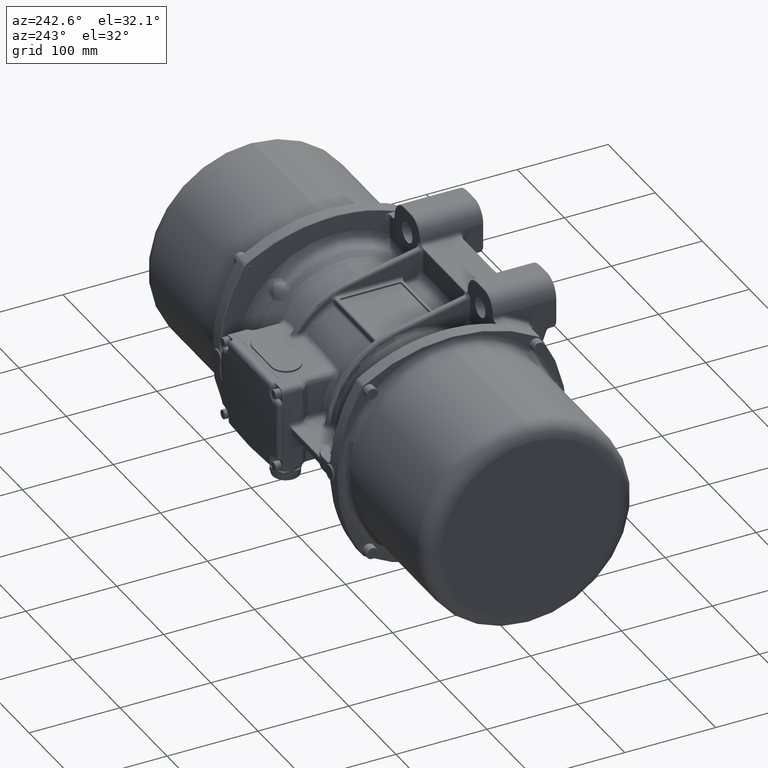
[diagram: clean part render]
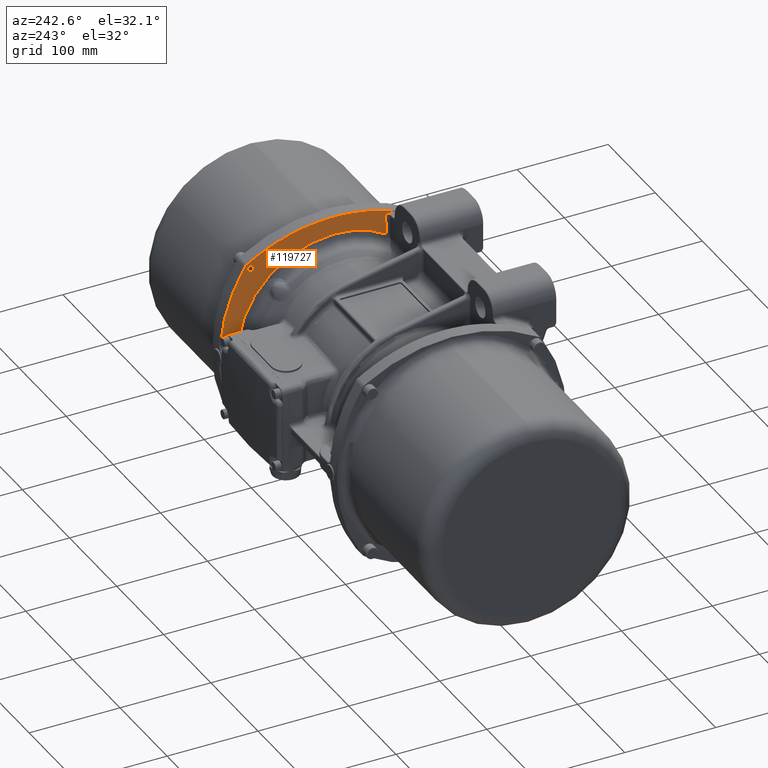
[diagram: same view with one face highlighted and labeled with its STEP entity id]
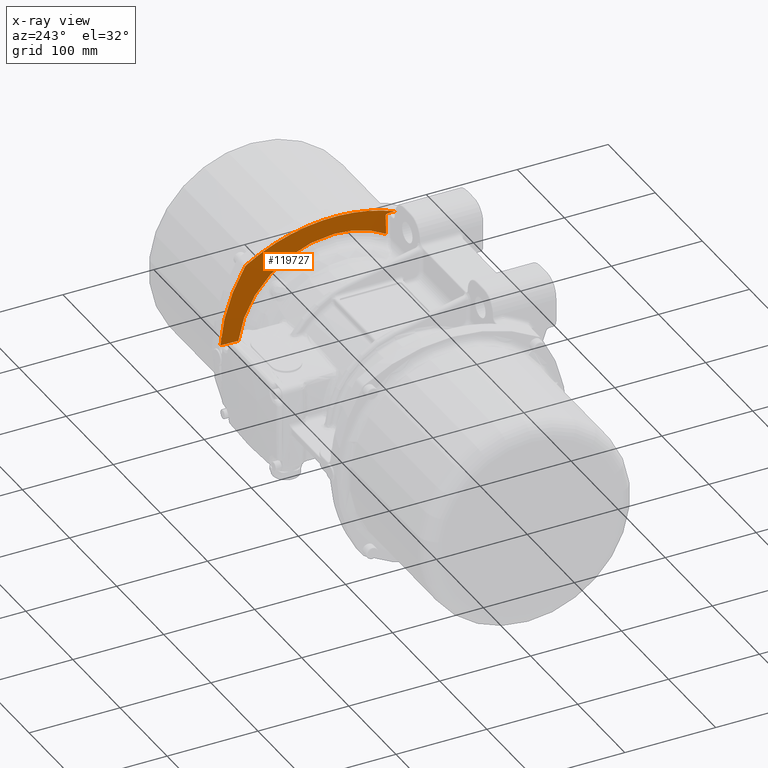
[diagram: x-ray of the same camera — body ghosted, the highlighted face saturated]
A machine part, auxiliary view. The second image highlights one B-rep face of the part: STEP entity #119727.
The next image is the same camera in x-ray: the body ghosted, the highlighted face saturated — about 0% of this face is hidden behind the body in this view.
In plain terms, the highlighted conical surface has half-angle 87.5 deg.
Its self-contained STEP definition (entity closure, byte-faithful):
#2241 = CARTESIAN_POINT ( 'NONE',  ( 117.4677150568148100, 125.0368863530946400, 13.47196392093218300 ) ) ;
#3470 = CARTESIAN_POINT ( 'NONE',  ( 117.4558255696128000, 1.925480652683108500, 125.6727941061263900 ) ) ;
#3715 = ORIENTED_EDGE ( 'NONE', *, *, #57928, .F. ) ;
#4384 = CARTESIAN_POINT ( 'NONE',  ( 117.4677150568148100, 125.0368863530946400, 13.47196392093218300 ) ) ;
#4963 = CARTESIAN_POINT ( 'NONE',  ( 116.6257580500384000, -1.324948089295330500E-009, 106.4765673558459000 ) ) ;
#6811 = CARTESIAN_POINT ( 'NONE',  ( 116.6257580500384100, 1.615201028482005100E-010, 9.119874994079069100E-011 ) ) ;
#8222 = CARTESIAN_POINT ( 'NONE',  ( 117.4677150568148100, 125.0368863530946400, 13.47196392093218300 ) ) ;
#12786 = EDGE_CURVE ( 'NONE', #91182, #26614, #55706, .T. ) ;
#13473 = CARTESIAN_POINT ( 'NONE',  ( 116.6257580500119800, 105.6215036489031000, 13.46689875197479900 ) ) ;
#14242 = CARTESIAN_POINT ( 'NONE',  ( 117.4653605061657400, -12.21067130720426200, 125.1627290816952600 ) ) ;
#14693 = CARTESIAN_POINT ( 'NONE',  ( 117.5932019673642500, 50.77557176755970400, 118.2420169232824100 ) ) ;
#17097 = CARTESIAN_POINT ( 'NONE',  ( 117.5342284559889500, -59.53953818600024300, 112.4999999996195300 ) ) ;
#17587 = CARTESIAN_POINT ( 'NONE',  ( 117.6447263070271100, 115.4079156445912800, 59.54687298320791900 ) ) ;
#18033 = CARTESIAN_POINT ( 'NONE',  ( 117.7161084170270600, 111.4364372665774400, 69.74394892624351900 ) ) ;
#18946 = CARTESIAN_POINT ( 'NONE',  ( 117.6671670750270900, 114.1659180145869100, 62.96627683421986200 ) ) ;
#19624 = CARTESIAN_POINT ( 'NONE',  ( 117.9704105569999900, 8.945691409856237900E-010, -1.024501664059762600E-009 ) ) ;
#20157 = VERTEX_POINT ( 'NONE', #53649 ) ;
#20210 = ORIENTED_EDGE ( 'NONE', *, *, #85045, .T. ) ;
#22697 = CARTESIAN_POINT ( 'NONE',  ( 117.9534219861792800, 97.87939773999440300, 95.69297844499453700 ) ) ;
#23172 = CARTESIAN_POINT ( 'NONE',  ( 117.4615539192428600, -57.34308942459055200, 111.7676824286001800 ) ) ;
#24544 = CARTESIAN_POINT ( 'NONE',  ( 117.4747312341459800, -57.66477074799093600, 111.9416851892193700 ) ) ;
#25771 = EDGE_CURVE ( 'NONE', #20157, #64998, #51093, .T. ) ;
#25882 = CARTESIAN_POINT ( 'NONE',  ( 117.9605981440000000, 97.27063747900000100, 96.54655349200001500 ) ) ;
#25916 = CARTESIAN_POINT ( 'NONE',  ( 117.4687988098957600, -57.51886362279500300, 111.8639397533196800 ) ) ;
#26614 = VERTEX_POINT ( 'NONE', #133314 ) ;
#27746 = VERTEX_POINT ( 'NONE', #4963 ) ;
#28803 = CARTESIAN_POINT ( 'NONE',  ( 117.6970540325541500, -67.14356072571973800, 112.5000002714595700 ) ) ;
#29134 = B_SPLINE_CURVE_WITH_KNOTS ( 'NONE', 3,
 ( #2241, #45581, #44233, #13473 ),
 .UNSPECIFIED., .F., .F.,
 ( 4, 4 ),
 ( 0.0000000000000000000, 1.000000000000000000 ),
 .UNSPECIFIED. ) ;
#30312 = DIRECTION ( 'NONE',  ( 1.000000000000000000, 0.0000000000000000000, 0.0000000000000000000 ) ) ;
#30515 = ORIENTED_EDGE ( 'NONE', *, *, #25771, .T. ) ;
#33576 = CARTESIAN_POINT ( 'NONE',  ( 117.5342284559889500, -59.53953818600024300, 112.4999999996195300 ) ) ;
#34337 = CARTESIAN_POINT ( 'NONE',  ( 117.4697280557261600, -57.54166604394559700, 111.8761457554384200 ) ) ;
#34793 = CARTESIAN_POINT ( 'NONE',  ( 117.4881187190690100, -58.00886136670922600, 112.1090994818467100 ) ) ;
#34816 = ORIENTED_EDGE ( 'NONE', *, *, #65435, .F. ) ;
#36051 = CARTESIAN_POINT ( 'NONE',  ( 117.4741119955146200, -17.52749402712066700, 124.6937862437028300 ) ) ;
#36711 = EDGE_CURVE ( 'NONE', #46596, #58853, #133025, .T. ) ;
#37202 = CARTESIAN_POINT ( 'NONE',  ( 116.8903303810580500, -56.93384935760106900, 97.07296161886790700 ) ) ;
#37909 = CARTESIAN_POINT ( 'NONE',  ( 117.5408950908647700, -40.30670985989454600, 121.0975301589257200 ) ) ;
#38126 = CARTESIAN_POINT ( 'NONE',  ( 116.8562134858862000, -56.93339784807046300, 96.16626201456897100 ) ) ;
#39430 = CARTESIAN_POINT ( 'NONE',  ( 117.5828984120271500, 118.8128289306030200, 49.20870632417194900 ) ) ;
#39478 = CARTESIAN_POINT ( 'NONE',  ( 117.1615769978774000, -56.93729482049418100, 104.2225016164241400 ) ) ;
#43116 = ORIENTED_EDGE ( 'NONE', *, *, #111399, .T. ) ;
#44233 = CARTESIAN_POINT ( 'NONE',  ( 116.8829446854170200, 111.5595002864455400, 13.46872550317877800 ) ) ;
#45576 = CARTESIAN_POINT ( 'NONE',  ( 117.4929305054305800, -58.13825939651703600, 112.1661886081573000 ) ) ;
#45581 = CARTESIAN_POINT ( 'NONE',  ( 117.1635970217449900, 118.0312916445440000, 13.47041457825107000 ) ) ;
#46341 = EDGE_CURVE ( 'NONE', #122673, #27746, #137337, .T. ) ;
#46368 = CARTESIAN_POINT ( 'NONE',  ( 117.5438770599566600, 40.45340099158897800, 120.9304769266154700 ) ) ;
#46509 = CARTESIAN_POINT ( 'NONE',  ( 117.4935941885339800, -58.15636209073110800, 112.1739258373625600 ) ) ;
#46596 = VERTEX_POINT ( 'NONE', #28803 ) ;
#46976 = CARTESIAN_POINT ( 'NONE',  ( 117.5127138153233100, -58.68111357770693800, 112.3950822936966600 ) ) ;
#47291 = CARTESIAN_POINT ( 'NONE',  ( 117.6120843625127300, 54.15839114560847600, 117.2067033062465400 ) ) ;
#47354 = B_SPLINE_CURVE_WITH_KNOTS ( 'NONE', 3,
 ( #54974, #129532, #76411, #23172, #119758, #121629, #25916, #120699, #34337, #67516, #110381, #24544, #109458, #34793, #78673, #45576, #46509, #68426, #98726, #46976, #132309, #89435 ),
 .UNSPECIFIED., .F., .F.,
 ( 4, 2, 1, 1, 1, 1, 2, 2, 1, 1, 1, 1, 2, 2, 4 ),
 ( 0.0000000000000000000, 0.1250000000001702000, 0.1875000000002582700, 0.2187500000003062300, 0.2343750000003262900, 0.2421875000003363100, 0.2460937500003366500, 0.2500000000003370100, 0.3750000000003010900, 0.4375000000002795500, 0.4687500000002654500, 0.4843750000002551800, 0.4921875000002497400, 0.5000000000002443600, 1.000000000000000000 ),
 .UNSPECIFIED. ) ;
#48882 = CARTESIAN_POINT ( 'NONE',  ( 116.6257580500720100, -56.93003381136160400, 89.97905670306109000 ) ) ;
#51093 = B_SPLINE_CURVE_WITH_KNOTS ( 'NONE', 3,
 ( #48882, #92656, #102002, #38126, #37202, #112756, #123506, #59580, #134218, #70320, #72168, #61878, #93580, #39478, #83354, #104752 ),
 .UNSPECIFIED., .F., .F.,
 ( 4, 2, 2, 1, 1, 1, 1, 2, 2, 4 ),
 ( 0.0000000000000000000, 0.2500000000000121000, 0.3750000000000191500, 0.4375000000000226500, 0.4687500000000243100, 0.4843750000000242000, 0.4921875000000232600, 0.4960937500000237000, 0.5000000000000240900, 1.000000000000000000 ),
 .UNSPECIFIED. ) ;
#53649 = CARTESIAN_POINT ( 'NONE',  ( 116.6257580500720100, -56.93003381136160400, 89.97905670306109000 ) ) ;
#54779 = ORIENTED_EDGE ( 'NONE', *, *, #69151, .T. ) ;
#54974 = CARTESIAN_POINT ( 'NONE',  ( 117.4446526062106700, -56.94050154198230700, 111.5388498485508000 ) ) ;
#55706 =( BOUNDED_CURVE ( )  B_SPLINE_CURVE ( 3, ( #8222, #81934, #104701, #123902, #39430, #17587, #18946, #134620, #18033, #70742, #93540, #104235, #92169, #113626 ),
 .UNSPECIFIED., .F., .F. ) 
 B_SPLINE_CURVE_WITH_KNOTS ( ( 4, 2, 2, 2, 2, 2, 4 ),
 ( 0.0000000000000000000, 0.2500000000000001100, 0.5000000000000000000, 0.6250000000000000000, 0.6875000000000004400, 0.7500000000000001100, 1.000000000000000000 ),
 .UNSPECIFIED. ) 
 CURVE ( )  GEOMETRIC_REPRESENTATION_ITEM ( )  RATIONAL_B_SPLINE_CURVE ( ( 0.9999999997482387200, 0.9999999997482309500, 0.9999999997482171800, 0.9999999997481798800, 0.9999999997481563400, 0.9999999997481157100, 0.9999999997481012800, 0.9999999997480788500, 0.9999999997480710800, 0.9999999997480555300, 0.9999999997480475400, 0.9999999997480075700, 0.9999999997479740400, 0.9999999997479411800 ) ) 
 REPRESENTATION_ITEM ( '' )  );
#56659 = CARTESIAN_POINT ( 'NONE',  ( 117.4832950217658700, 23.00264973529984400, 124.2020360313829000 ) ) ;
#57123 = CARTESIAN_POINT ( 'NONE',  ( 117.4853410423307700, -22.84648942015866900, 124.0912025975205400 ) ) ;
#57928 = EDGE_CURVE ( 'NONE', #80049, #46596, #74830, .T. ) ;
#58853 = VERTEX_POINT ( 'NONE', #33576 ) ;
#59580 = CARTESIAN_POINT ( 'NONE',  ( 116.9989676127996000, -56.93523184266374700, 99.94514217519140700 ) ) ;
#60196 = FACE_OUTER_BOUND ( 'NONE', #67870, .T. ) ;
#61663 = AXIS2_PLACEMENT_3D ( 'NONE', #89118, #131969, #122650 ) ;
#61878 = CARTESIAN_POINT ( 'NONE',  ( 117.0276646004862200, -56.93559454232180900, 100.7005631658567900 ) ) ;
#63550 = CONICAL_SURFACE ( 'NONE', #66773, 137.2741731000750200, 1.527163095474054900 ) ;
#64998 = VERTEX_POINT ( 'NONE', #135622 ) ;
#65435 = EDGE_CURVE ( 'NONE', #26614, #80049, #77372, .T. ) ;
#65906 = AXIS2_PLACEMENT_3D ( 'NONE', #6811, #81413, #105125 ) ;
#66773 = AXIS2_PLACEMENT_3D ( 'NONE', #19624, #30312, #72351 ) ;
#67516 = CARTESIAN_POINT ( 'NONE',  ( 117.4699097405919600, -57.54613173628055700, 111.8785282797704800 ) ) ;
#67870 = EDGE_LOOP ( 'NONE', ( #109345, #20210, #106261, #43116, #30515, #54779, #97964, #3715, #34816 ) ) ;
#68390 = CARTESIAN_POINT ( 'NONE',  ( 117.9582153470000100, 97.60004065400001100, 96.13576295099999000 ) ) ;
#68426 = CARTESIAN_POINT ( 'NONE',  ( 117.4940343853696900, -58.16839406668354700, 112.1790441752266900 ) ) ;
#69151 = EDGE_CURVE ( 'NONE', #64998, #58853, #47354, .T. ) ;
#69201 = CARTESIAN_POINT ( 'NONE',  ( 117.9534219861794200, 95.69297844499453700, 97.87939773999434600 ) ) ;
#70111 = CARTESIAN_POINT ( 'NONE',  ( 117.5139955482369300, -33.39640890584971800, 122.5496517376416100 ) ) ;
#70211 = CARTESIAN_POINT ( 'NONE',  ( 117.9534219861794200, 95.69297844499453700, 97.87939773999434600 ) ) ;
#70320 = CARTESIAN_POINT ( 'NONE',  ( 117.0221331036147600, -56.93552442488754700, 100.5550434354021400 ) ) ;
#70742 = CARTESIAN_POINT ( 'NONE',  ( 117.7421544580270000, 109.9754056325723500, 73.10880424825528200 ) ) ;
#71019 = CARTESIAN_POINT ( 'NONE',  ( 117.6970540325541500, -67.14356072571973800, 112.5000002714595700 ) ) ;
#71150 = CARTESIAN_POINT ( 'NONE',  ( 117.5852473182077600, -62.03761550530162300, 112.5000000000000000 ) ) ;
#72168 = CARTESIAN_POINT ( 'NONE',  ( 117.0254514859381200, -56.93556647849380400, 100.6423453762404800 ) ) ;
#72351 = DIRECTION ( 'NONE',  ( 0.0000000000000000000, 0.0000000000000000000, -1.000000000000000000 ) ) ;
#74830 = B_SPLINE_CURVE_WITH_KNOTS ( 'NONE', 3,
 ( #69201, #100432, #111628, #90643, #78534, #47291, #14693, #122386, #120561, #46368, #133072, #121486, #56659, #89299, #3470, #78078, #14242, #36051, #99501, #57123, #131688, #70111, #37909, #112545, #133550, #71019 ),
 .UNSPECIFIED., .F., .F.,
 ( 4, 2, 2, 2, 2, 2, 2, 2, 2, 2, 2, 2, 4 ),
 ( 0.0000000000000000000, 0.1249999996300779100, 0.2499999992601558100, 0.3124999990751948200, 0.3437499989827143000, 0.3749999988902337800, 0.4999999985203117400, 0.6249999981503897600, 0.6874999979654288200, 0.7187499978729483500, 0.7499999977804677800, 0.8749999974105457900, 0.9999999970406239200 ),
 .UNSPECIFIED. ) ;
#76411 = CARTESIAN_POINT ( 'NONE',  ( 117.4551946183333400, -57.19052490387786500, 111.6822255681057200 ) ) ;
#77372 = B_SPLINE_CURVE_WITH_KNOTS ( 'NONE', 3,
 ( #22697, #68390, #25882, #134109, #89851, #70211 ),
 .UNSPECIFIED., .F., .F.,
 ( 4, 2, 4 ),
 ( 0.0000000000000000000, 0.4999999999999998300, 1.000000000000000000 ),
 .UNSPECIFIED. ) ;
#77830 = CIRCLE ( 'NONE', #65906, 106.4765673521439200 ) ;
#78078 = CARTESIAN_POINT ( 'NONE',  ( 117.4615111325971000, -8.672188522774142400, 125.3684986890540100 ) ) ;
#78534 = CARTESIAN_POINT ( 'NONE',  ( 117.6736306582324500, 64.18681501000156700, 113.8123089406194200 ) ) ;
#78673 = CARTESIAN_POINT ( 'NONE',  ( 117.4913581965744400, -58.09563683806681000, 112.1477168754524500 ) ) ;
#80049 = VERTEX_POINT ( 'NONE', #113700 ) ;
#81413 = DIRECTION ( 'NONE',  ( 1.000000000000000000, 7.887646011182615700E-017, 1.634229061735414500E-016 ) ) ;
#81934 = CARTESIAN_POINT ( 'NONE',  ( 117.4780132550273400, 124.4854513636227700, 20.79179788307261500 ) ) ;
#83354 = CARTESIAN_POINT ( 'NONE',  ( 117.2998347311564100, -56.93892732649145200, 107.8155808417640200 ) ) ;
#85045 = EDGE_CURVE ( 'NONE', #91182, #122673, #29134, .T. ) ;
#89118 = CARTESIAN_POINT ( 'NONE',  ( 116.6257580500384100, 1.615201028482005100E-010, 9.119874994079069100E-011 ) ) ;
#89299 = CARTESIAN_POINT ( 'NONE',  ( 117.4598579839941300, 8.966844016890739500, 125.4575345331731300 ) ) ;
#89435 = CARTESIAN_POINT ( 'NONE',  ( 117.5342284559889500, -59.53953818600024300, 112.4999999996195300 ) ) ;
#89851 = CARTESIAN_POINT ( 'NONE',  ( 117.9582145340000100, 96.13568784999998200, 97.60008803499998500 ) ) ;
#90643 = CARTESIAN_POINT ( 'NONE',  ( 117.7211941447193100, 70.71235923906897400, 111.1647280000434000 ) ) ;
#91182 = VERTEX_POINT ( 'NONE', #4384 ) ;
#91848 = CARTESIAN_POINT ( 'NONE',  ( 116.6257580500119800, 105.6215036489031000, 13.46689875197479900 ) ) ;
#92169 = CARTESIAN_POINT ( 'NONE',  ( 117.8862196940268500, 101.7959478565437800, 89.48519707931272600 ) ) ;
#92656 = CARTESIAN_POINT ( 'NONE',  ( 116.6895903507547400, -56.93099331901333900, 91.70850494880349400 ) ) ;
#93540 = CARTESIAN_POINT ( 'NONE',  ( 117.7555954480269800, 109.2189626575697200, 74.78022000426112500 ) ) ;
#93580 = CARTESIAN_POINT ( 'NONE',  ( 117.0288501139603200, -56.93560958532908200, 100.7317455750511500 ) ) ;
#97964 = ORIENTED_EDGE ( 'NONE', *, *, #36711, .F. ) ;
#98726 = CARTESIAN_POINT ( 'NONE',  ( 117.4941861534030100, -58.17254720609292900, 112.1808062427526100 ) ) ;
#99501 = CARTESIAN_POINT ( 'NONE',  ( 117.4775304439665000, -19.30347826514093200, 124.5104903847466900 ) ) ;
#100432 = CARTESIAN_POINT ( 'NONE',  ( 117.8880239306729200, 89.65188783184126500, 101.6907722855968500 ) ) ;
#102002 = CARTESIAN_POINT ( 'NONE',  ( 116.7551832472800200, -56.93199911412072100, 93.47140822133383200 ) ) ;
#104235 = CARTESIAN_POINT ( 'NONE',  ( 117.8247101320268700, 105.3148954675560600, 83.06628760929027100 ) ) ;
#104701 = CARTESIAN_POINT ( 'NONE',  ( 117.4965518310273200, 123.4920692676193300, 28.00186197409786400 ) ) ;
#104752 = CARTESIAN_POINT ( 'NONE',  ( 117.4446526062106700, -56.94050154198230700, 111.5388498485508000 ) ) ;
#105125 = DIRECTION ( 'NONE',  ( 1.303365440202184100E-016, 0.0000000000000000000, -1.000000000000000000 ) ) ;
#106261 = ORIENTED_EDGE ( 'NONE', *, *, #46341, .T. ) ;
#109345 = ORIENTED_EDGE ( 'NONE', *, *, #12786, .F. ) ;
#109458 = CARTESIAN_POINT ( 'NONE',  ( 117.4812603248852800, -57.82920040463454100, 112.0251597614870500 ) ) ;
#110381 = CARTESIAN_POINT ( 'NONE',  ( 117.4699443534840100, -57.54698220505617500, 111.8789823326259900 ) ) ;
#111399 = EDGE_CURVE ( 'NONE', #27746, #20157, #77830, .T. ) ;
#111628 = CARTESIAN_POINT ( 'NONE',  ( 117.8283876077965900, 83.44494832555082600, 105.1041938334160100 ) ) ;
#112545 = CARTESIAN_POINT ( 'NONE',  ( 117.6086709398305500, -53.89775693686579000, 117.3973370291105500 ) ) ;
#112756 = CARTESIAN_POINT ( 'NONE',  ( 116.9421659472703300, -56.93451493282712100, 98.44566082180990900 ) ) ;
#113626 = CARTESIAN_POINT ( 'NONE',  ( 117.9534219861792800, 97.87939773999440300, 95.69297844499453700 ) ) ;
#113700 = CARTESIAN_POINT ( 'NONE',  ( 117.9534219861794200, 95.69297844499453700, 97.87939773999434600 ) ) ;
#119727 = ADVANCED_FACE ( 'NONE', ( #60196 ), #63550, .T. ) ;
#119758 = CARTESIAN_POINT ( 'NONE',  ( 117.4644756517453200, -57.41353189947273700, 111.8067457315234300 ) ) ;
#120561 = CARTESIAN_POINT ( 'NONE',  ( 117.5593017267778300, 43.91809912657205200, 120.0919422721017900 ) ) ;
#120699 = CARTESIAN_POINT ( 'NONE',  ( 117.4694535134434400, -57.53492163387809200, 111.8725435818127400 ) ) ;
#121106 = CARTESIAN_POINT ( 'NONE',  ( 117.6395240876071600, -64.57228972763343200, 112.5000000000000000 ) ) ;
#121486 = CARTESIAN_POINT ( 'NONE',  ( 117.5027061943588400, 29.99620245186772000, 123.1605952318218400 ) ) ;
#121629 = CARTESIAN_POINT ( 'NONE',  ( 117.4674329832484000, -57.48546376572049600, 111.8459366869252800 ) ) ;
#122386 = CARTESIAN_POINT ( 'NONE',  ( 117.5674549445889700, 45.64011359670002600, 119.6478370820456700 ) ) ;
#122650 = DIRECTION ( 'NONE',  ( 1.303365440202184100E-016, 0.0000000000000000000, -1.000000000000000000 ) ) ;
#122673 = VERTEX_POINT ( 'NONE', #91848 ) ;
#123506 = CARTESIAN_POINT ( 'NONE',  ( 116.9682487862401000, -56.93484514436475800, 99.13517275289513000 ) ) ;
#123902 = CARTESIAN_POINT ( 'NONE',  ( 117.5489941580272300, 120.6558171586094200, 42.21027471314745600 ) ) ;
#124309 = CARTESIAN_POINT ( 'NONE',  ( 117.6970540325541500, -67.14356072571973800, 112.5000002714595700 ) ) ;
#129532 = CARTESIAN_POINT ( 'NONE',  ( 117.4502673031875700, -57.07324039890826800, 111.6154825641819900 ) ) ;
#131688 = CARTESIAN_POINT ( 'NONE',  ( 117.4897274763960400, -24.61168393851899300, 123.8555094024282100 ) ) ;
#131969 = DIRECTION ( 'NONE',  ( 1.000000000000000000, 7.887646011182615700E-017, 1.634229061735414500E-016 ) ) ;
#132309 = CARTESIAN_POINT ( 'NONE',  ( 117.5259662358715400, -59.13501225166201200, 112.4999874280815100 ) ) ;
#133025 = B_SPLINE_CURVE_WITH_KNOTS ( 'NONE', 3,
 ( #124309, #121106, #71150, #17097 ),
 .UNSPECIFIED., .F., .F.,
 ( 4, 4 ),
 ( 0.0000000000000000000, 1.000000000000000000 ),
 .UNSPECIFIED. ) ;
#133072 = CARTESIAN_POINT ( 'NONE',  ( 117.5366049297607300, 38.71007063502145200, 121.3249441444234400 ) ) ;
#133314 = CARTESIAN_POINT ( 'NONE',  ( 117.9534219861792800, 97.87939773999440300, 95.69297844499453700 ) ) ;
#133550 = CARTESIAN_POINT ( 'NONE',  ( 117.6495293763374800, -60.57901902982638400, 115.1508720331215600 ) ) ;
#134109 = CARTESIAN_POINT ( 'NONE',  ( 117.9605685980000100, 96.53921506500002200, 97.27696734900000300 ) ) ;
#134218 = CARTESIAN_POINT ( 'NONE',  ( 117.0143992380196900, -56.93542657638421600, 100.3515121046221200 ) ) ;
#134620 = CARTESIAN_POINT ( 'NONE',  ( 117.7035346240270300, 112.1392775955798600, 68.05462877223760600 ) ) ;
#135622 = CARTESIAN_POINT ( 'NONE',  ( 117.4446526062106700, -56.94050154198230700, 111.5388498485508000 ) ) ;
#137337 = CIRCLE ( 'NONE', #61663, 106.4765673521439200 ) ;